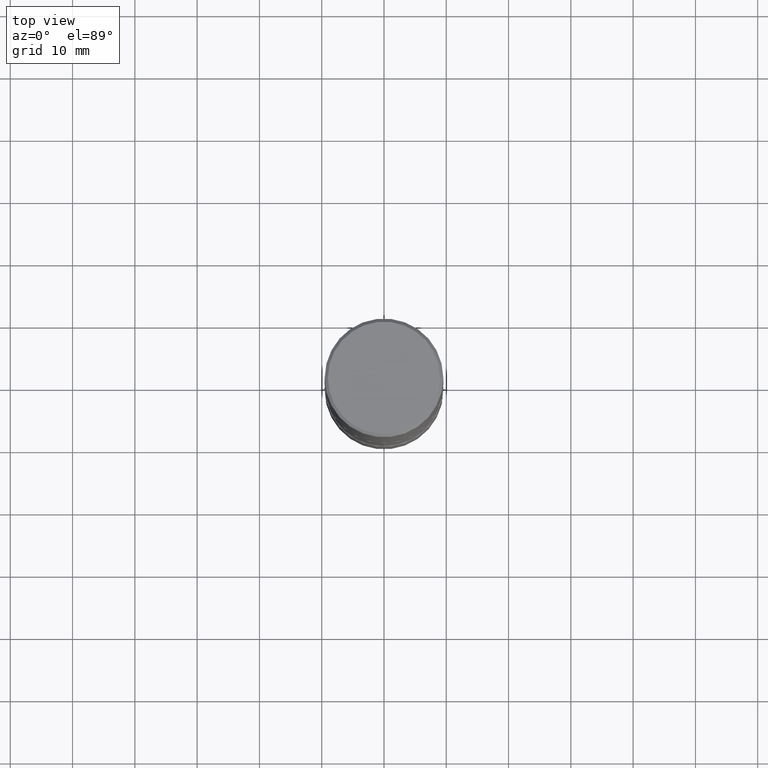
[diagram: clean part render]
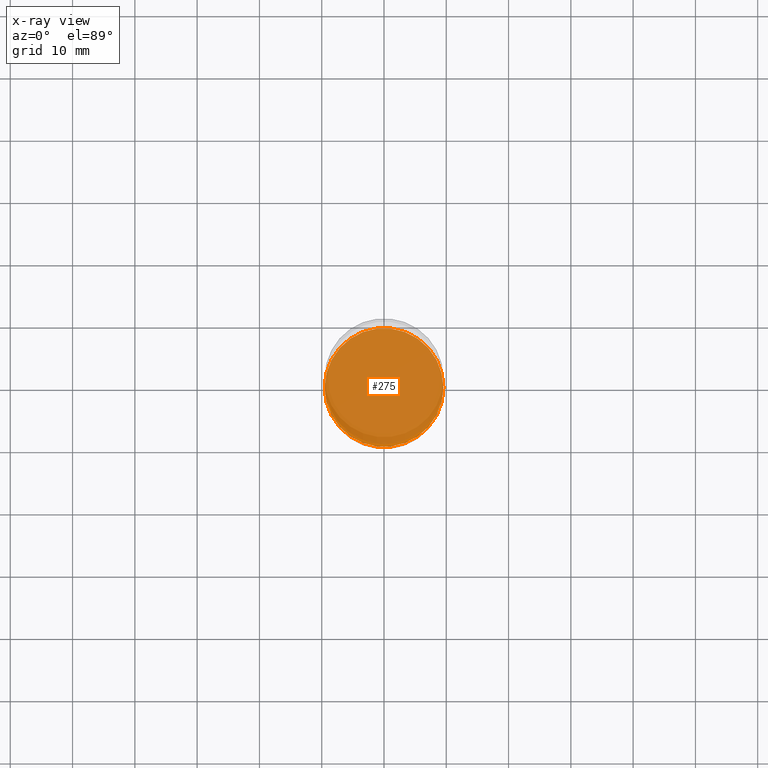
[diagram: x-ray — body ghosted, one internal face saturated and labeled with its STEP entity id]
A machine part, top view, then the same camera in x-ray: the body is ghosted and one INTERNAL B-rep face — a face not visible from any outside direction — is saturated and labeled: STEP entity #275.
In plain terms, the highlighted planar face has unit normal (0, -0, -1).
Its self-contained STEP definition (entity closure, byte-faithful):
#7 = CIRCLE ( 'NONE', #175, 0.3750000000000001665 ) ;
#8 = VERTEX_POINT ( 'NONE', #444 ) ;
#43 = EDGE_LOOP ( 'NONE', ( #252, #508 ) ) ;
#62 = CARTESIAN_POINT ( 'NONE',  ( 8.713205356437641927E-29, -1.244014801029812826E-14, -3.563000000000000167 ) ) ;
#84 = CIRCLE ( 'NONE', #268, 0.3750000000000001665 ) ;
#117 = DIRECTION ( 'NONE',  ( -1.000000000000000000, 6.982962677686265922E-15, -4.876176775795935793E-29 ) ) ;
#175 = AXIS2_PLACEMENT_3D ( 'NONE', #62, #525, #188 ) ;
#188 = DIRECTION ( 'NONE',  ( 1.000000000000000000, -6.982962677686264344E-15, 0.000000000000000000 ) ) ;
#193 = AXIS2_PLACEMENT_3D ( 'NONE', #418, #551, #117 ) ;
#197 = EDGE_CURVE ( 'NONE', #470, #8, #84, .T. ) ;
#230 = CARTESIAN_POINT ( 'NONE',  ( 8.713205356437641927E-29, -1.244014801029812826E-14, -3.563000000000000167 ) ) ;
#252 = ORIENTED_EDGE ( 'NONE', *, *, #441, .T. ) ;
#268 = AXIS2_PLACEMENT_3D ( 'NONE', #230, #397, #407 ) ;
#275 = ADVANCED_FACE ( 'NONE', ( #443 ), #542, .F. ) ;
#397 = DIRECTION ( 'NONE',  ( -2.445468806185136597E-29, 3.491481338843145583E-15, 1.000000000000000000 ) ) ;
#407 = DIRECTION ( 'NONE',  ( 1.000000000000000000, -6.982962677686264344E-15, 0.000000000000000000 ) ) ;
#418 = CARTESIAN_POINT ( 'NONE',  ( 8.713205356437641927E-29, -1.244014801029812826E-14, -3.563000000000000167 ) ) ;
#420 = CARTESIAN_POINT ( 'NONE',  ( -0.3750000000000001665, -1.130662731828047193E-14, -3.563000000000000167 ) ) ;
#441 = EDGE_CURVE ( 'NONE', #8, #470, #7, .T. ) ;
#443 = FACE_OUTER_BOUND ( 'NONE', #43, .T. ) ;
#444 = CARTESIAN_POINT ( 'NONE',  ( 0.3750000000000001665, -1.505875901443047827E-14, -3.563000000000000167 ) ) ;
#470 = VERTEX_POINT ( 'NONE', #420 ) ;
#508 = ORIENTED_EDGE ( 'NONE', *, *, #197, .T. ) ;
#525 = DIRECTION ( 'NONE',  ( -2.445468806185136597E-29, 3.491481338843145583E-15, 1.000000000000000000 ) ) ;
#542 = PLANE ( 'NONE',  #193 ) ;
#551 = DIRECTION ( 'NONE',  ( 2.438088387897960049E-29, -3.491481338843145188E-15, -1.000000000000000000 ) ) ;